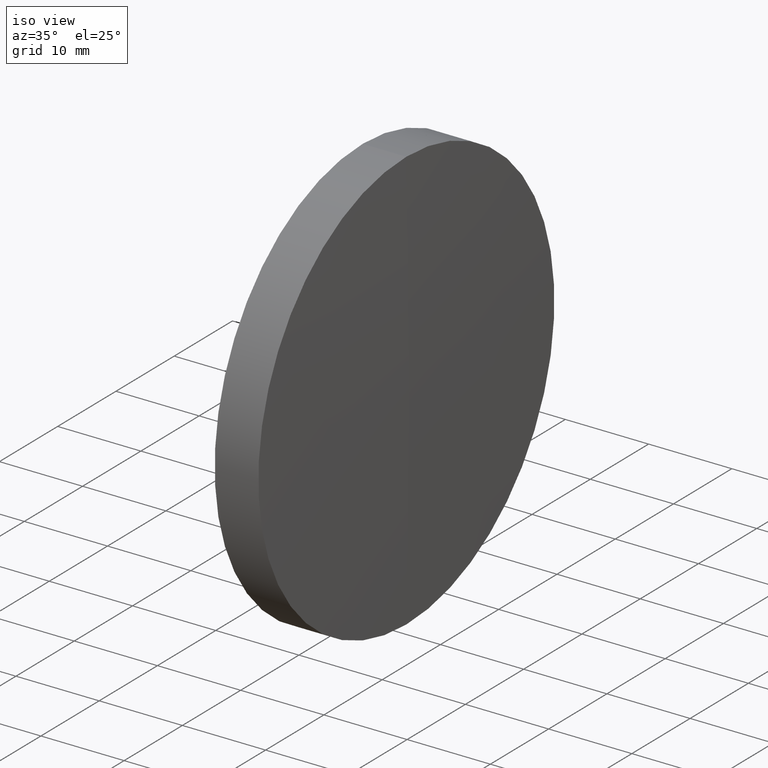
[diagram: clean part render]
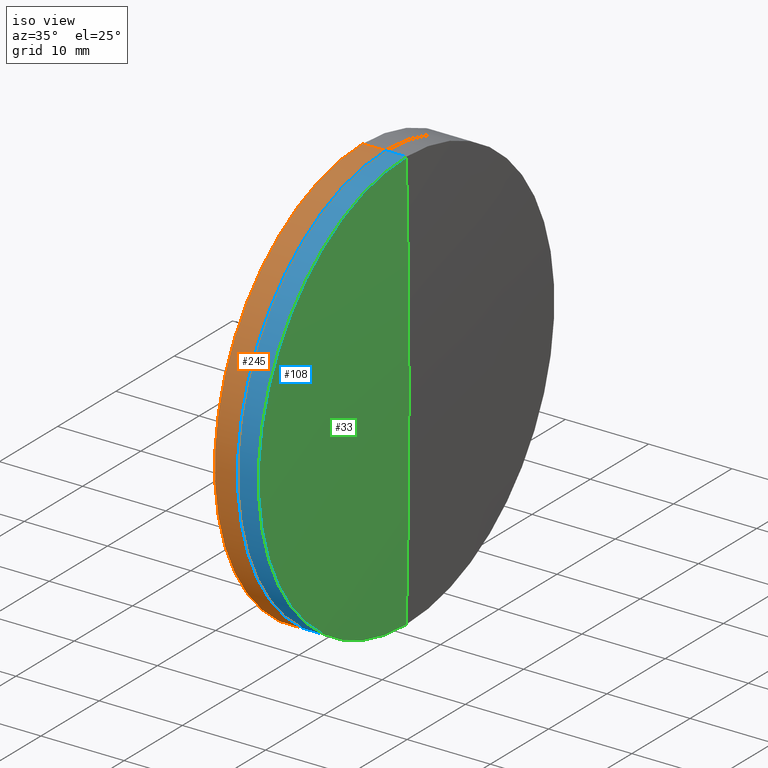
[diagram: same view with three faces highlighted in distinct colors, each labeled with its STEP entity id]
A machine part, iso view with three faces highlighted in distinct colors.
Their STEP definitions:

[orange] entity #245 — the highlighted cylindrical surface (partial cylindrical patch) has radius 25.4 mm, axis along (-1, -0, -0).
#2 = EDGE_LOOP ( 'NONE', ( #34, #65, #285, #180 ) ) ;
#15 = LINE ( 'NONE', #83, #294 ) ;
#18 = DIRECTION ( 'NONE',  ( 0.0000000000000000000, 0.0000000000000000000, 1.000000000000000000 ) ) ;
#34 = ORIENTED_EDGE ( 'NONE', *, *, #223, .F. ) ;
#43 = CARTESIAN_POINT ( 'NONE',  ( 610.6585094951291200, 3.110602869834124200E-015, -25.40000000000113200 ) ) ;
#44 = DIRECTION ( 'NONE',  ( -1.000000000000000000, -0.0000000000000000000, -0.0000000000000000000 ) ) ;
#45 = DIRECTION ( 'NONE',  ( -1.000000000000000000, -0.0000000000000000000, -0.0000000000000000000 ) ) ;
#53 = VERTEX_POINT ( 'NONE', #299 ) ;
#65 = ORIENTED_EDGE ( 'NONE', *, *, #196, .T. ) ;
#67 = LINE ( 'NONE', #286, #273 ) ;
#83 = CARTESIAN_POINT ( 'NONE',  ( 124.5233095260452400, 0.0000000000000000000, 25.39999999999922100 ) ) ;
#87 = DIRECTION ( 'NONE',  ( -1.000000000000000000, -0.0000000000000000000, -0.0000000000000000000 ) ) ;
#93 = AXIS2_PLACEMENT_3D ( 'NONE', #307, #255, #18 ) ;
#95 = EDGE_CURVE ( 'NONE', #215, #248, #15, .T. ) ;
#122 = DIRECTION ( 'NONE',  ( 0.0000000000000000000, 0.0000000000000000000, 1.000000000000000000 ) ) ;
#151 = CARTESIAN_POINT ( 'NONE',  ( 613.4104506559709800, 0.0000000000000000000, 0.0000000000000000000 ) ) ;
#164 = AXIS2_PLACEMENT_3D ( 'NONE', #283, #45, #345 ) ;
#170 = CIRCLE ( 'NONE', #164, 25.39999999999922800 ) ;
#180 = ORIENTED_EDGE ( 'NONE', *, *, #293, .F. ) ;
#194 = CYLINDRICAL_SURFACE ( 'NONE', #93, 25.39999999999922100 ) ;
#196 = EDGE_CURVE ( 'NONE', #53, #215, #228, .T. ) ;
#205 = AXIS2_PLACEMENT_3D ( 'NONE', #151, #312, #122 ) ;
#215 = VERTEX_POINT ( 'NONE', #342 ) ;
#223 = EDGE_CURVE ( 'NONE', #53, #280, #67, .T. ) ;
#228 = CIRCLE ( 'NONE', #205, 25.39999999999921700 ) ;
#229 = CARTESIAN_POINT ( 'NONE',  ( 610.6585094951291200, 0.0000000000000000000, 25.39999999999875200 ) ) ;
#245 = ADVANCED_FACE ( 'NONE', ( #335 ), #194, .T. ) ;
#248 = VERTEX_POINT ( 'NONE', #229 ) ;
#255 = DIRECTION ( 'NONE',  ( -1.000000000000000000, -0.0000000000000000000, -0.0000000000000000000 ) ) ;
#273 = VECTOR ( 'NONE', #44, 1000.000000000000000 ) ;
#280 = VERTEX_POINT ( 'NONE', #43 ) ;
#283 = CARTESIAN_POINT ( 'NONE',  ( 610.6585094951291200, 0.0000000000000000000, 0.0000000000000000000 ) ) ;
#285 = ORIENTED_EDGE ( 'NONE', *, *, #95, .T. ) ;
#286 = CARTESIAN_POINT ( 'NONE',  ( 124.5233095260452400, 3.110602869834181800E-015, -25.39999999999922100 ) ) ;
#293 = EDGE_CURVE ( 'NONE', #280, #248, #170, .T. ) ;
#294 = VECTOR ( 'NONE', #87, 1000.000000000000000 ) ;
#299 = CARTESIAN_POINT ( 'NONE',  ( 613.4104506559709800, 3.110602869834181400E-015, -25.39999999999921700 ) ) ;
#307 = CARTESIAN_POINT ( 'NONE',  ( 124.5233095260452400, 0.0000000000000000000, 0.0000000000000000000 ) ) ;
#312 = DIRECTION ( 'NONE',  ( -1.000000000000000000, -0.0000000000000000000, -0.0000000000000000000 ) ) ;
#335 = FACE_OUTER_BOUND ( 'NONE', #2, .T. ) ;
#342 = CARTESIAN_POINT ( 'NONE',  ( 613.4104506559709800, 0.0000000000000000000, 25.39999999999921700 ) ) ;
#345 = DIRECTION ( 'NONE',  ( 0.0000000000000000000, 0.0000000000000000000, 1.000000000000000000 ) ) ;

[blue] entity #108 — the highlighted cylindrical surface (partial cylindrical patch) has radius 25.4 mm, axis along (-1, -0, -0).
#8 = VERTEX_POINT ( 'NONE', #244 ) ;
#26 = DIRECTION ( 'NONE',  ( -1.000000000000000000, -0.0000000000000000000, -0.0000000000000000000 ) ) ;
#31 = CARTESIAN_POINT ( 'NONE',  ( 615.9062923119943200, 0.0000000000000000000, 25.39999999999895800 ) ) ;
#37 = VECTOR ( 'NONE', #241, 1000.000000000000000 ) ;
#41 = CARTESIAN_POINT ( 'NONE',  ( 613.4104506559709800, 3.110602869834183000E-015, -25.39999999999914600 ) ) ;
#59 = ORIENTED_EDGE ( 'NONE', *, *, #80, .T. ) ;
#75 = VERTEX_POINT ( 'NONE', #31 ) ;
#80 = EDGE_CURVE ( 'NONE', #75, #8, #291, .T. ) ;
#90 = AXIS2_PLACEMENT_3D ( 'NONE', #212, #26, #239 ) ;
#103 = DIRECTION ( 'NONE',  ( -1.000000000000000000, -0.0000000000000000000, -0.0000000000000000000 ) ) ;
#107 = CARTESIAN_POINT ( 'NONE',  ( -0.5519199926577972300, 0.0000000000000000000, 25.39999999999916000 ) ) ;
#108 = ADVANCED_FACE ( 'NONE', ( #224 ), #284, .T. ) ;
#116 = VECTOR ( 'NONE', #171, 1000.000000000000000 ) ;
#132 = CIRCLE ( 'NONE', #153, 25.39999999999935600 ) ;
#148 = VERTEX_POINT ( 'NONE', #221 ) ;
#153 = AXIS2_PLACEMENT_3D ( 'NONE', #236, #156, #346 ) ;
#156 = DIRECTION ( 'NONE',  ( -1.000000000000000000, -0.0000000000000000000, -0.0000000000000000000 ) ) ;
#165 = EDGE_CURVE ( 'NONE', #242, #8, #132, .T. ) ;
#171 = DIRECTION ( 'NONE',  ( -1.000000000000000000, -0.0000000000000000000, -0.0000000000000000000 ) ) ;
#183 = EDGE_CURVE ( 'NONE', #148, #75, #201, .T. ) ;
#186 = ORIENTED_EDGE ( 'NONE', *, *, #165, .F. ) ;
#191 = AXIS2_PLACEMENT_3D ( 'NONE', #288, #103, #261 ) ;
#201 = CIRCLE ( 'NONE', #191, 25.39999999999895800 ) ;
#202 = CARTESIAN_POINT ( 'NONE',  ( -0.5519199926577972300, 3.110602869834174300E-015, -25.39999999999916000 ) ) ;
#212 = CARTESIAN_POINT ( 'NONE',  ( -0.5519199926577972300, 0.0000000000000000000, 0.0000000000000000000 ) ) ;
#221 = CARTESIAN_POINT ( 'NONE',  ( 615.9062923119943200, 3.110602869834161700E-015, -25.39999999999895800 ) ) ;
#224 = FACE_OUTER_BOUND ( 'NONE', #347, .T. ) ;
#236 = CARTESIAN_POINT ( 'NONE',  ( 613.4104506559709800, 0.0000000000000000000, 0.0000000000000000000 ) ) ;
#239 = DIRECTION ( 'NONE',  ( 0.0000000000000000000, 0.0000000000000000000, 1.000000000000000000 ) ) ;
#241 = DIRECTION ( 'NONE',  ( -1.000000000000000000, -0.0000000000000000000, -0.0000000000000000000 ) ) ;
#242 = VERTEX_POINT ( 'NONE', #41 ) ;
#244 = CARTESIAN_POINT ( 'NONE',  ( 613.4104506559709800, 0.0000000000000000000, 25.39999999999923100 ) ) ;
#249 = EDGE_CURVE ( 'NONE', #148, #242, #265, .T. ) ;
#256 = ORIENTED_EDGE ( 'NONE', *, *, #183, .T. ) ;
#261 = DIRECTION ( 'NONE',  ( 0.0000000000000000000, 0.0000000000000000000, 1.000000000000000000 ) ) ;
#265 = LINE ( 'NONE', #202, #116 ) ;
#271 = ORIENTED_EDGE ( 'NONE', *, *, #249, .F. ) ;
#284 = CYLINDRICAL_SURFACE ( 'NONE', #90, 25.39999999999916000 ) ;
#288 = CARTESIAN_POINT ( 'NONE',  ( 615.9062923119943200, 0.0000000000000000000, 0.0000000000000000000 ) ) ;
#291 = LINE ( 'NONE', #107, #37 ) ;
#346 = DIRECTION ( 'NONE',  ( 0.0000000000000000000, 0.0000000000000000000, 1.000000000000000000 ) ) ;
#347 = EDGE_LOOP ( 'NONE', ( #271, #256, #59, #186 ) ) ;

[green] entity #33 — the highlighted spherical surface has radius 1023.3 mm.
#22 = CARTESIAN_POINT ( 'NONE',  ( 616.2215759061234600, 0.0000000000000000000, 6.265905347837432300E-014 ) ) ;
#31 = CARTESIAN_POINT ( 'NONE',  ( 615.9062923119943200, 0.0000000000000000000, 25.39999999999895800 ) ) ;
#33 = ADVANCED_FACE ( 'NONE', ( #127 ), #144, .T. ) ;
#36 = EDGE_LOOP ( 'NONE', ( #290, #209, #330 ) ) ;
#51 = CIRCLE ( 'NONE', #109, 1023.299999999999800 ) ;
#56 = CARTESIAN_POINT ( 'NONE',  ( -407.0784240938763800, 0.0000000000000000000, 0.0000000000000000000 ) ) ;
#61 = CIRCLE ( 'NONE', #74, 1023.299999999999800 ) ;
#74 = AXIS2_PLACEMENT_3D ( 'NONE', #200, #123, #289 ) ;
#75 = VERTEX_POINT ( 'NONE', #31 ) ;
#89 = DIRECTION ( 'NONE',  ( 0.0000000000000000000, 1.000000000000000000, 0.0000000000000000000 ) ) ;
#103 = DIRECTION ( 'NONE',  ( -1.000000000000000000, -0.0000000000000000000, -0.0000000000000000000 ) ) ;
#105 = DIRECTION ( 'NONE',  ( 0.0000000000000000000, -1.000000000000000000, 0.0000000000000000000 ) ) ;
#109 = AXIS2_PLACEMENT_3D ( 'NONE', #262, #105, #152 ) ;
#123 = DIRECTION ( 'NONE',  ( -0.0000000000000000000, 1.000000000000000000, 1.224646799147353200E-016 ) ) ;
#127 = FACE_OUTER_BOUND ( 'NONE', #36, .T. ) ;
#144 = SPHERICAL_SURFACE ( 'NONE', #329, 1023.299999999999800 ) ;
#148 = VERTEX_POINT ( 'NONE', #221 ) ;
#152 = DIRECTION ( 'NONE',  ( 0.0000000000000000000, 0.0000000000000000000, -1.000000000000000000 ) ) ;
#161 = DIRECTION ( 'NONE',  ( 0.0000000000000000000, 0.0000000000000000000, 1.000000000000000000 ) ) ;
#183 = EDGE_CURVE ( 'NONE', #148, #75, #201, .T. ) ;
#191 = AXIS2_PLACEMENT_3D ( 'NONE', #288, #103, #261 ) ;
#195 = VERTEX_POINT ( 'NONE', #22 ) ;
#200 = CARTESIAN_POINT ( 'NONE',  ( -407.0784240938763800, 0.0000000000000000000, 0.0000000000000000000 ) ) ;
#201 = CIRCLE ( 'NONE', #191, 25.39999999999895800 ) ;
#209 = ORIENTED_EDGE ( 'NONE', *, *, #274, .T. ) ;
#221 = CARTESIAN_POINT ( 'NONE',  ( 615.9062923119943200, 3.110602869834161700E-015, -25.39999999999895800 ) ) ;
#254 = EDGE_CURVE ( 'NONE', #195, #148, #61, .T. ) ;
#261 = DIRECTION ( 'NONE',  ( 0.0000000000000000000, 0.0000000000000000000, 1.000000000000000000 ) ) ;
#262 = CARTESIAN_POINT ( 'NONE',  ( -407.0784240938763800, 0.0000000000000000000, 0.0000000000000000000 ) ) ;
#274 = EDGE_CURVE ( 'NONE', #195, #75, #51, .T. ) ;
#288 = CARTESIAN_POINT ( 'NONE',  ( 615.9062923119943200, 0.0000000000000000000, 0.0000000000000000000 ) ) ;
#289 = DIRECTION ( 'NONE',  ( 0.0000000000000000000, -1.224646799147353200E-016, 1.000000000000000000 ) ) ;
#290 = ORIENTED_EDGE ( 'NONE', *, *, #254, .F. ) ;
#329 = AXIS2_PLACEMENT_3D ( 'NONE', #56, #89, #161 ) ;
#330 = ORIENTED_EDGE ( 'NONE', *, *, #183, .F. ) ;